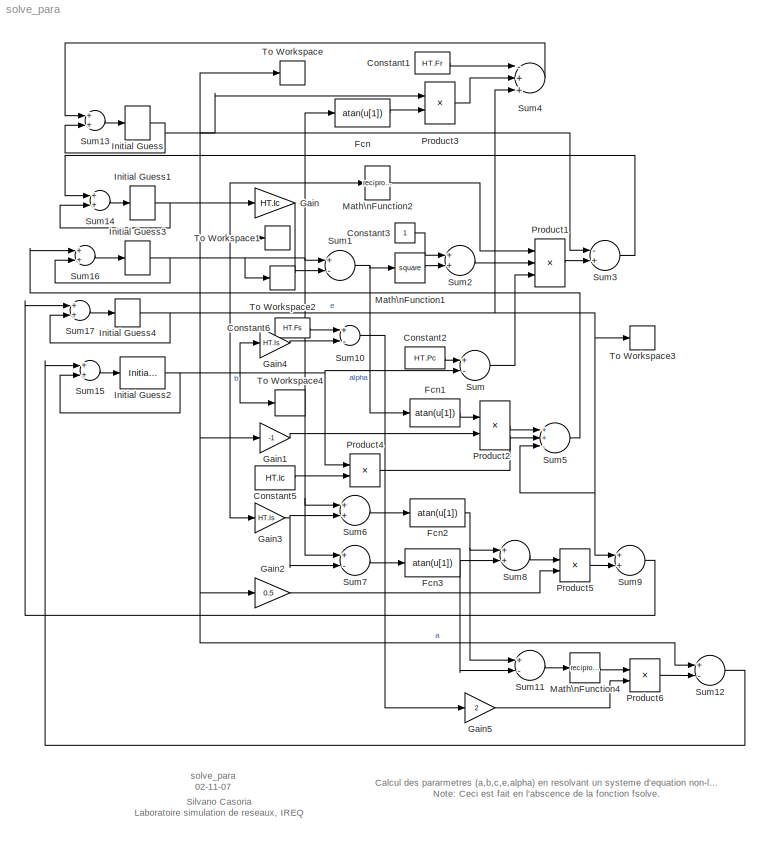
MODEL solve_para
KIND model
BLOCK [Constant] Constant1
  Value = HT.Fr
BLOCK [Constant] Constant2
  Value = HT.Pc
BLOCK [Constant] Constant3
BLOCK [Constant] Constant5
  Value = HT.Ic
BLOCK [Constant] Constant6
  Value = HT.Fs
BLOCK [Fcn] Fcn
  Expr = atan(u[1])
BLOCK [Fcn] Fcn1
  Expr = atan(u[1])
BLOCK [Fcn] Fcn2
  Expr = atan(u[1])
BLOCK [Fcn] Fcn3
  Expr = atan(u[1])
BLOCK [Gain] Gain
  Gain = HT.Ic
BLOCK [Gain] Gain1
  Gain = -1
BLOCK [Gain] Gain2
  Gain = 0.5
BLOCK [Gain] Gain3
  Gain = HT.Is
BLOCK [Gain] Gain4
  Gain = HT.Is
BLOCK [Gain] Gain5
  Gain = 2
BLOCK [InitialCondition] Initial Guess
  Value = a0
BLOCK [InitialCondition] Initial Guess1
  Value = b0
BLOCK [InitialCondition] Initial Guess2
  Value = alpha0
BLOCK [InitialCondition] Initial Guess3
  Value = c0
BLOCK [InitialCondition] Initial Guess4
  Value = e0
BLOCK [Math] Math\nFunction1
  Operator = square
  Ports = [1, 1]
BLOCK [Math] Math\nFunction2
  Operator = reciprocal
  Ports = [1, 1]
BLOCK [Math] Math\nFunction4
  Operator = reciprocal
  Ports = [1, 1]
BLOCK [Product] Product1
  Inputs = 3
  Ports = [3, 1]
  RndMeth = Floor
BLOCK [Product] Product2
  Ports = [2, 1]
  RndMeth = Floor
BLOCK [Product] Product3
  Ports = [2, 1]
  RndMeth = Floor
BLOCK [Product] Product4
  Ports = [2, 1]
  RndMeth = Floor
BLOCK [Product] Product5
  Ports = [2, 1]
  RndMeth = Floor
BLOCK [Product] Product6
  Ports = [2, 1]
  RndMeth = Floor
BLOCK [Sum] Sum
  Inputs = +-
  Ports = [2, 1]
BLOCK [Sum] Sum1
  Inputs = +-
  Ports = [2, 1]
BLOCK [Sum] Sum10
  Inputs = +-
  Ports = [2, 1]
BLOCK [Sum] Sum11
  Inputs = +-
  Ports = [2, 1]
BLOCK [Sum] Sum12
  Inputs = +-
  Ports = [2, 1]
BLOCK [Sum] Sum13
  Ports = [2, 1]
BLOCK [Sum] Sum14
  Ports = [2, 1]
BLOCK [Sum] Sum15
  Ports = [2, 1]
BLOCK [Sum] Sum16
  Ports = [2, 1]
BLOCK [Sum] Sum17
  Ports = [2, 1]
BLOCK [Sum] Sum2
  Ports = [2, 1]
BLOCK [Sum] Sum3
  Inputs = -+
  Ports = [2, 1]
BLOCK [Sum] Sum4
  Inputs = -++
  Ports = [3, 1]
BLOCK [Sum] Sum5
  Inputs = ++-
  Ports = [3, 1]
BLOCK [Sum] Sum6
  Ports = [2, 1]
BLOCK [Sum] Sum7
  Inputs = +-
  Ports = [2, 1]
BLOCK [Sum] Sum8
  Ports = [2, 1]
BLOCK [Sum] Sum9
  Ports = [2, 1]
BLOCK [ToWorkspace] To Workspace
  MaxDataPoints = inf
  SampleTime = -1
  SaveFormat = Array
  VariableName = a
BLOCK [ToWorkspace] To Workspace1
  MaxDataPoints = inf
  SampleTime = -1
  SaveFormat = Array
  VariableName = b
BLOCK [ToWorkspace] To Workspace2
  MaxDataPoints = inf
  SampleTime = -1
  SaveFormat = Array
  VariableName = c
BLOCK [ToWorkspace] To Workspace3
  MaxDataPoints = inf
  SampleTime = -1
  SaveFormat = Array
  VariableName = e
BLOCK [ToWorkspace] To Workspace4
  MaxDataPoints = inf
  SampleTime = -1
  SaveFormat = Array
  VariableName = alfa
ANNOTATION (root): Calcul des pararmetres (a,b,c,e,alpha) en resolvant un systeme d'equation non-lineaire.\nNote: Ceci est fait en l'abscence de la fonction fsolve.
ANNOTATION (root): Silvano Casoria\nLaboratoire simulation de reseaux, IREQ
ANNOTATION (root): \n\n
ANNOTATION (root): solve_para\n02-11-07
LINE Constant1:1 -> Sum4:1
LINE Constant2:1 -> Sum:1
LINE Constant3:1 -> Sum2:1
LINE Constant5:1 -> Product4:2
LINE Constant6:1 -> Sum10:1
LINE Fcn1:1 -> Product2:1
NET Fcn2:1 -> Sum11:1, Sum8:1
NET Fcn3:1 -> Sum11:2, Sum8:2
LINE Fcn:1 -> Product3:2
LINE Gain1:1 -> Product2:2
LINE Gain2:1 -> Product5:2
NET Gain3:1 -> Sum6:2, Sum7:2
LINE Gain4:1 -> Sum10:2
LINE Gain5:1 -> Product6:2
LINE Gain:1 -> Sum1:2
NET Initial Guess1:1 -> Gain3:1, Gain:1, Math\nFunction2:1, Sum14:2, To Workspace1:1
NET Initial Guess2:1 -> Gain4:1, Product4:1, Sum15:2, Sum:2, To Workspace4:1
NET Initial Guess3:1 -> Fcn:1, Sum16:2, Sum1:1, Sum6:1, Sum7:1, To Workspace2:1
NET Initial Guess4:1 -> Sum17:2, Sum4:3, Sum5:3, Sum9:1, To Workspace3:1
NET Initial Guess:1 -> Gain1:1, Gain2:1, Product3:1, Sum12:1, Sum13:2, Sum3:1, To Workspace:1
LINE Math\nFunction1:1 -> Sum2:2
LINE Math\nFunction2:1 -> Product1:1
LINE Math\nFunction4:1 -> Product6:1
LINE Product1:1 -> Sum3:2
LINE Product2:1 -> Sum5:1
LINE Product3:1 -> Sum4:2
LINE Product4:1 -> Sum5:2
LINE Product5:1 -> Sum9:2
LINE Product6:1 -> Sum12:2
LINE Sum10:1 -> Gain5:1
LINE Sum11:1 -> Math\nFunction4:1
LINE Sum12:1 -> Sum15:1
LINE Sum13:1 -> Initial Guess:1
LINE Sum14:1 -> Initial Guess1:1
LINE Sum15:1 -> Initial Guess2:1
LINE Sum16:1 -> Initial Guess3:1
LINE Sum17:1 -> Initial Guess4:1
NET Sum1:1 -> Fcn1:1, Math\nFunction1:1
LINE Sum2:1 -> Product1:2
LINE Sum3:1 -> Sum14:1
LINE Sum4:1 -> Sum13:1
LINE Sum5:1 -> Sum16:1
LINE Sum6:1 -> Fcn2:1
LINE Sum7:1 -> Fcn3:1
LINE Sum8:1 -> Product5:1
LINE Sum9:1 -> Sum17:1
LINE Sum:1 -> Product1:3
note: NET lines group one-source signal fan-out (src -> all destinations, sorted); 1:1 wires keep LINE
